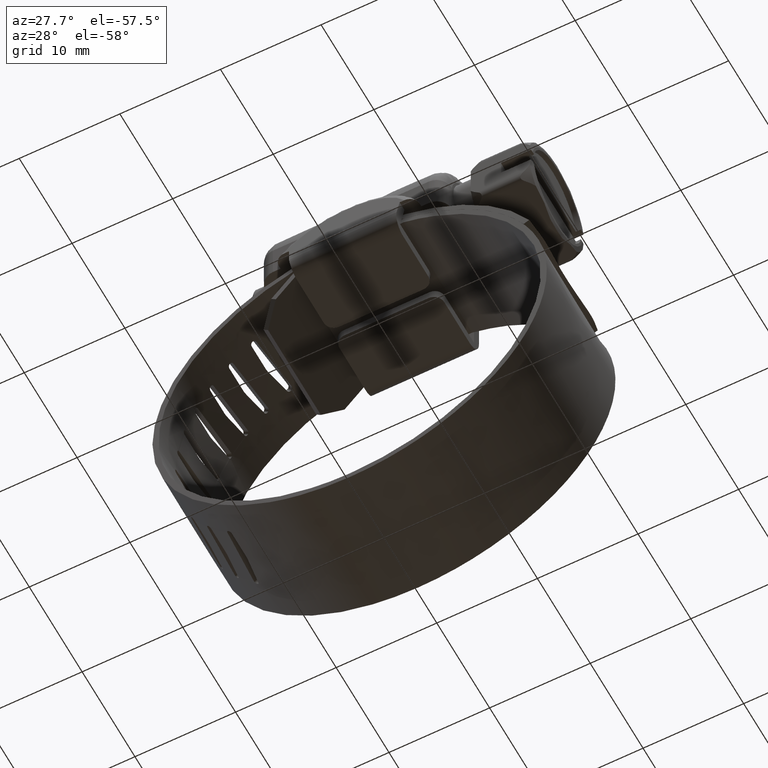
[diagram: clean part render]
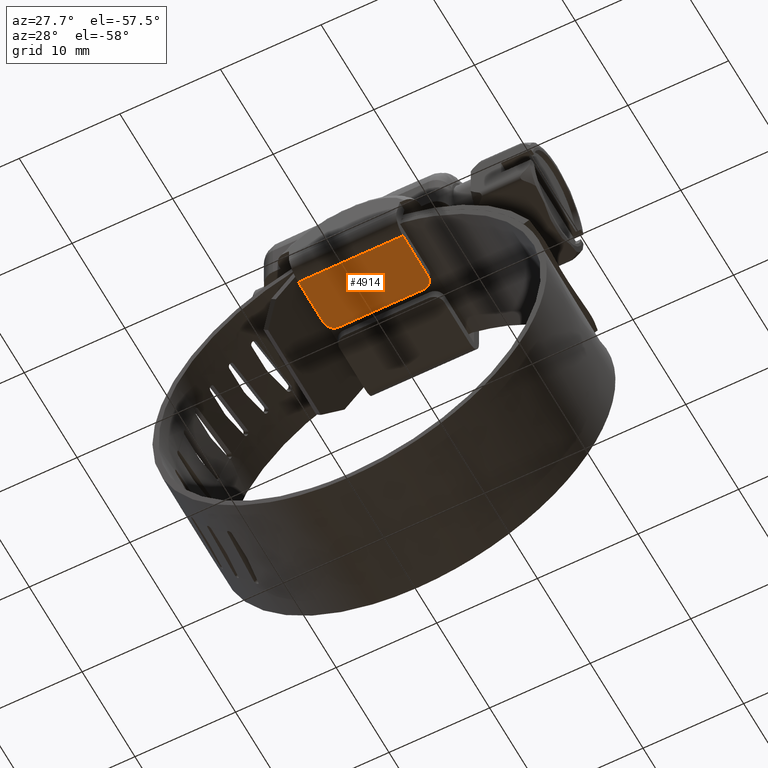
[diagram: same view with one face highlighted and labeled with its STEP entity id]
A machine part, auxiliary view. The second image highlights one B-rep face of the part: STEP entity #4914.
In plain terms, the highlighted face is a freeform B-spline surface patch.
Its self-contained STEP definition (entity closure, byte-faithful):
#2911=CARTESIAN_POINT('',(-5.200000000000000,-6.303124778494929,9.477083000000221));
#2912=VERTEX_POINT('',#2911);
#2929=CARTESIAN_POINT('',(5.200000000000100,-6.303124778494929,9.477083000000221));
#2930=VERTEX_POINT('',#2929);
#2931=CARTESIAN_POINT('',(5.200000000000100,-6.303124778494929,9.477083000000221));
#2932=CARTESIAN_POINT('',(-5.200000000000000,-6.303124778494929,9.477083000000221));
#2933=QUASI_UNIFORM_CURVE('',1,(#2931,#2932),.UNSPECIFIED.,.F.,.U.);
#2934=EDGE_CURVE('',#2930,#2912,#2933,.T.);
#3564=CARTESIAN_POINT('',(-4.196533785100645,-0.499999999999945,9.477083000000221));
#3565=VERTEX_POINT('',#3564);
#3571=CARTESIAN_POINT('',(-5.200000000000000,-1.499999999999946,9.477083000000221));
#3572=VERTEX_POINT('',#3571);
#3573=CARTESIAN_POINT('',(-5.200000000000000,-1.499999999999946,9.477083000000221));
#3574=CARTESIAN_POINT('',(-5.199885659518450,-1.377054015853372,9.477083000000214));
#3575=CARTESIAN_POINT('',(-5.164259046559663,-1.188721273929142,9.477083000000233));
#3576=CARTESIAN_POINT('',(-5.041633939804362,-0.946213465251207,9.477083000000203));
#3577=CARTESIAN_POINT('',(-4.894662891928983,-0.767748445839834,9.477083000000237));
#3578=CARTESIAN_POINT('',(-4.708731853094735,-0.630348492433545,9.477083000000215));
#3579=CARTESIAN_POINT('',(-4.475174009622897,-0.527290867842522,9.477083000000222));
#3580=CARTESIAN_POINT('',(-4.303079861295620,-0.499767444547014,9.477083000000230));
#3581=CARTESIAN_POINT('',(-4.196533785100645,-0.499999999999945,9.477083000000221));
#3582=B_SPLINE_CURVE_WITH_KNOTS('',3,(#3573,#3574,#3575,#3576,#3577,#3578,#3579,#3580,#3581),.UNSPECIFIED.,.F.,.U.,(4,1,1,1,1,1,4),(0.000000069941885,0.368786399468990,0.565483138148418,0.811323896159405,1.057185655203492,1.253878299582498,1.573494233742537),.UNSPECIFIED.);
#3583=EDGE_CURVE('',#3572,#3565,#3582,.T.);
#3665=CARTESIAN_POINT('',(4.196533785100741,-0.499999999999945,9.477083000000221));
#3666=VERTEX_POINT('',#3665);
#3667=CARTESIAN_POINT('',(5.200000000000100,-1.499999999999946,9.477083000000221));
#3668=VERTEX_POINT('',#3667);
#3669=CARTESIAN_POINT('',(4.196533785100741,-0.499999999999945,9.477083000000221));
#3670=CARTESIAN_POINT('',(4.319482958348976,-0.499660230224615,9.477083000000210));
#3671=CARTESIAN_POINT('',(4.540774702698212,-0.540627658033015,9.477083000000240));
#3672=CARTESIAN_POINT('',(4.793324509437717,-0.683101933657406,9.477083000000199));
#3673=CARTESIAN_POINT('',(4.960578718104880,-0.841849982391517,9.477083000000237));
#3674=CARTESIAN_POINT('',(5.074661704211620,-1.003242209469806,9.477083000000222));
#3675=CARTESIAN_POINT('',(5.171831867323144,-1.221418123719175,9.477083000000222));
#3676=CARTESIAN_POINT('',(5.199883803580574,-1.393448693184767,9.477083000000222));
#3677=CARTESIAN_POINT('',(5.200000000000100,-1.499999999999946,9.477083000000221));
#3678=B_SPLINE_CURVE_WITH_KNOTS('',3,(#3669,#3670,#3671,#3672,#3673,#3674,#3675,#3676,#3677),.UNSPECIFIED.,.F.,.U.,(4,1,1,1,1,1,4),(0.000000070048616,0.368816981456645,0.663884462653286,0.860559671184574,1.057273321320121,1.253982282628302,1.573624721683004),.UNSPECIFIED.);
#3679=EDGE_CURVE('',#3666,#3668,#3678,.T.);
#3794=CARTESIAN_POINT('',(4.196533785100741,-0.499999999999945,9.477083000000221));
#3795=CARTESIAN_POINT('',(-4.196533785100645,-0.499999999999945,9.477083000000221));
#3796=QUASI_UNIFORM_CURVE('',1,(#3794,#3795),.UNSPECIFIED.,.F.,.U.);
#3797=EDGE_CURVE('',#3666,#3565,#3796,.T.);
#4893=CARTESIAN_POINT('',(-5.719479747431165,-6.592991013359923,9.477083000000221));
#4894=CARTESIAN_POINT('',(5.719479468481527,-6.592991013359923,9.477083000000221));
#4895=CARTESIAN_POINT('',(-5.719479747431165,-0.210133765134953,9.477083000000221));
#4896=CARTESIAN_POINT('',(5.719479468481527,-0.210133765134953,9.477083000000221));
#4897=B_SPLINE_SURFACE_WITH_KNOTS('',1,1,((#4893,#4895),(#4894,#4896)),.UNSPECIFIED.,.F.,.F.,.U.,(2,2),(2,2),(0.0,11.438959215912689),(0.0,6.382857248224969),.UNSPECIFIED.);
#4898=CARTESIAN_POINT('',(5.200000000000100,-6.303124778494929,9.477083000000221));
#4899=CARTESIAN_POINT('',(5.200000000000100,-1.499999999999946,9.477083000000221));
#4900=QUASI_UNIFORM_CURVE('',1,(#4898,#4899),.UNSPECIFIED.,.F.,.U.);
#4901=EDGE_CURVE('',#2930,#3668,#4900,.T.);
#4902=ORIENTED_EDGE('',*,*,#4901,.F.);
#4903=ORIENTED_EDGE('',*,*,#2934,.T.);
#4904=CARTESIAN_POINT('',(-5.200000000000000,-6.303124778494929,9.477083000000221));
#4905=CARTESIAN_POINT('',(-5.200000000000000,-1.499999999999946,9.477083000000221));
#4906=QUASI_UNIFORM_CURVE('',1,(#4904,#4905),.UNSPECIFIED.,.F.,.U.);
#4907=EDGE_CURVE('',#2912,#3572,#4906,.T.);
#4908=ORIENTED_EDGE('',*,*,#4907,.T.);
#4909=ORIENTED_EDGE('',*,*,#3583,.T.);
#4910=ORIENTED_EDGE('',*,*,#3797,.F.);
#4911=ORIENTED_EDGE('',*,*,#3679,.T.);
#4912=EDGE_LOOP('',(#4902,#4903,#4908,#4909,#4910,#4911));
#4913=FACE_OUTER_BOUND('',#4912,.T.);
#4914=ADVANCED_FACE('',(#4913),#4897,.F.);